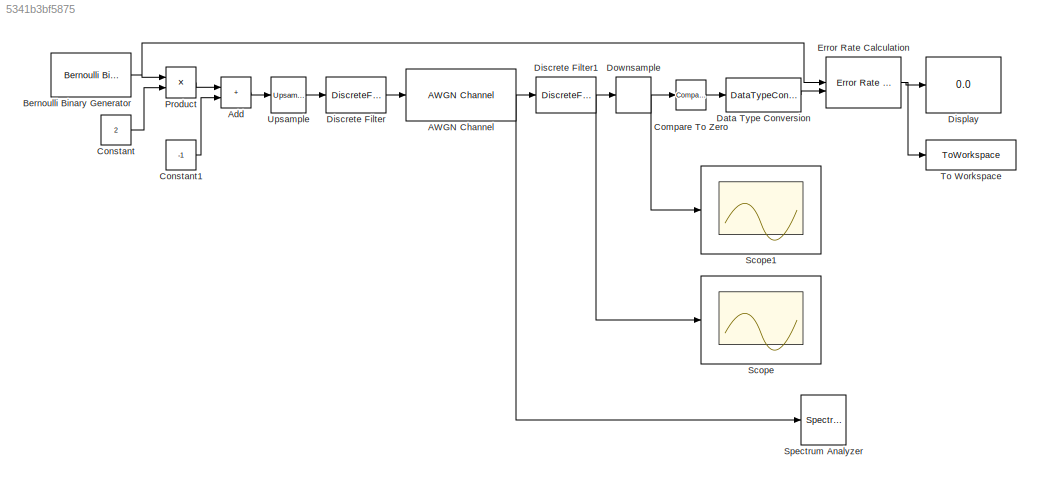
MODEL mdl_5341b3bf5875
KIND model
CONFIG AbsTol = auto
CONFIG EnableMultiTasking = off
CONFIG FixedStep = auto
CONFIG MaxStep = auto
CONFIG MinStep = auto
CONFIG RelTol = 1e-3
CONFIG SampleTimeConstraint = Unconstrained
CONFIG SolverName = FixedStepDiscrete
CONFIG StartTime = 0.0
CONFIG StopTime = inf
BLOCK [Reference] AWGN Channel  REF=commchan3/AWGN
Channel
  SourceBlock = commchan3/AWGN\nChannel
  SourceType = AWGN Channel
BLOCK [Sum] Add
  IconShape = rectangular
BLOCK [Reference] Bernoulli Binary Generator  REF=commrandsrc3/Bernoulli Binary
Generator
  SourceBlock = commrandsrc3/Bernoulli Binary\nGenerator
  SourceType = Bernoulli Binary Generator
BLOCK [Reference] Compare To Zero  REF=simulink/Logic and Bit
Operations/Compare
To Zero
  SourceBlock = simulink/Logic and Bit\nOperations/Compare\nTo Zero
  SourceType = Compare To Zero
BLOCK [Constant] Constant
  Value = 2
BLOCK [Constant] Constant1
  Value = -1
BLOCK [DataTypeConversion] Data Type Conversion
  RndMeth = Floor
  SaturateOnIntegerOverflow = off
BLOCK [DiscreteFilter] Discrete Filter
  Denominator = [1]
  InputPortMap = u0
  Numerator = [1 1 1 1 -1 -1 -1 -1 ]
BLOCK [DiscreteFilter] Discrete Filter1
  Denominator = [1]
  InputPortMap = u0
  Numerator = -[1 1 1 1 -1 -1 -1 -1 ]
BLOCK [Display] Display
  Decimation = 1
BLOCK [DownSample] Downsample
  AllowArbitraryFixedInput = on
  N = 8
  RateOptions = Allow multirate processing
  phase = 7
BLOCK [Reference] Error Rate Calculation  REF=commsink2/Error Rate
Calculation
  SourceBlock = commsink2/Error Rate\nCalculation
  SourceType = Error Rate Calculation
BLOCK [Product] Product
BLOCK [Scope] Scope
  Commented = on
  Floating = off
  NumInputPorts = 1
BLOCK [Scope] Scope1
  Commented = on
  Floating = off
  NumInputPorts = 1
BLOCK [SpectrumAnalyzer] Spectrum Analyzer
  Commented = on
  GraphicalSettings = {"GraphicalSettings":{"Style":{"BackgroundColor":[0.12941176470588237,0.12941176470588237,0.12941176470588237],"AxesColor":[0.070588235294117646,0.070588235294117646,0.070588235294117646],"LabelsColor":[0.85098039215686272,0.85098039215686272,0.85098039215686272],"PreserveColors":false,"Visible":true,"LineStyle":["-"],"LineColor":[1,1,0.066666666666666666],"LineWidth":1.5,"Marker":["none"],"FontSi...<+930ch>
  ScopeFrameLocation = window
  Span = 8
  StartFrequency = -4
  StopFrequency = 4
  WasSavedAsWebScope = on
  WindowPosition = [368.000000,182.000000,800.000000,500.000000,]
  YLimits = [-50.93328592,6.03057014]
BLOCK [ToWorkspace] To Workspace
  FixptAsFi = on
  MaxDataPoints = 1
  SampleTime = -1
  Save2DSignal = 2-D array (concatenate along first dimension)
  VariableName = errors
BLOCK [Reference] Upsample  REF=dspsigops/Upsample
  SourceBlock = dspsigops/Upsample
  SourceType = Upsample
  UserDataPersistent = on
NET AWGN Channel:1 -> Discrete Filter1:1, Spectrum Analyzer:1
LINE Add:1 -> Upsample:1
NET Bernoulli Binary Generator:1 -> Error Rate Calculation:1, Product:1
LINE Compare To Zero:1 -> Data Type Conversion:1
LINE Constant1:1 -> Add:2
LINE Constant:1 -> Product:2
LINE Data Type Conversion:1 -> Error Rate Calculation:2
NET Discrete Filter1:1 -> Downsample:1, Scope:1
LINE Discrete Filter:1 -> AWGN Channel:1
NET Downsample:1 -> Compare To Zero:1, Scope1:1
NET Error Rate Calculation:1 -> Display:1, To Workspace:1
LINE Product:1 -> Add:1
LINE Upsample:1 -> Discrete Filter:1
note: NET lines group one-source signal fan-out (src -> all destinations, sorted); 1:1 wires keep LINE
